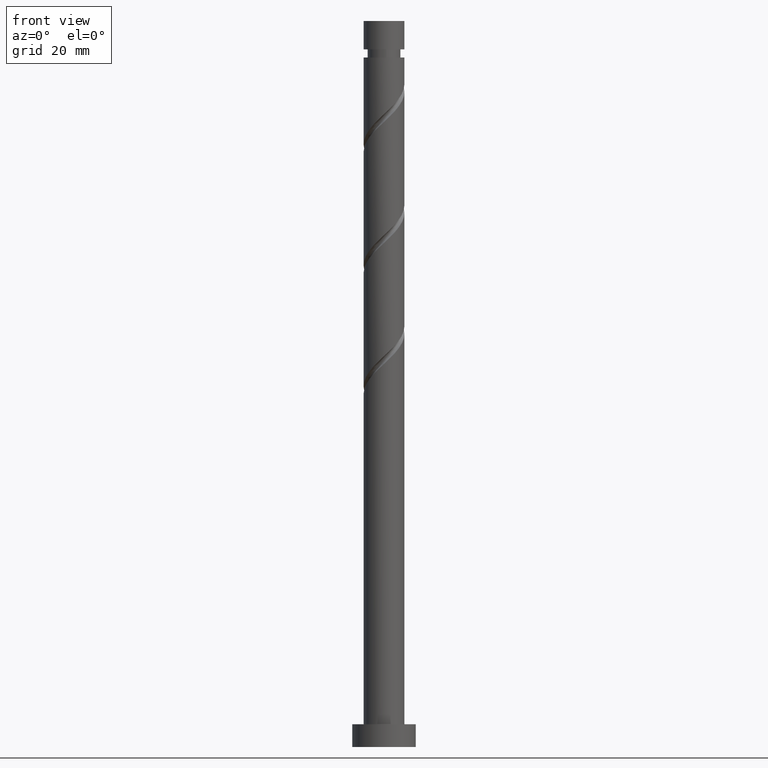
[diagram: clean part render]
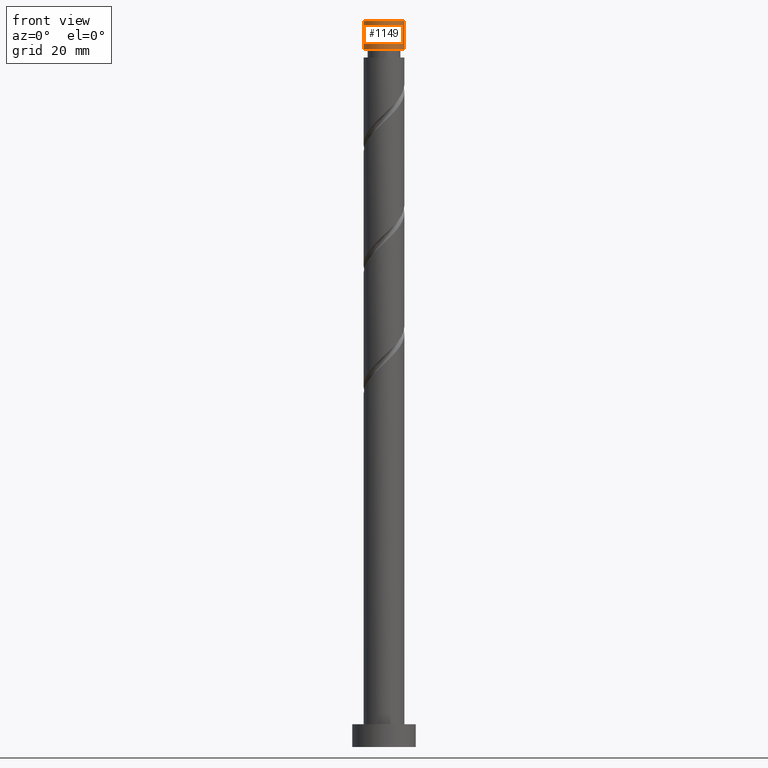
[diagram: same view with one face highlighted and labeled with its STEP entity id]
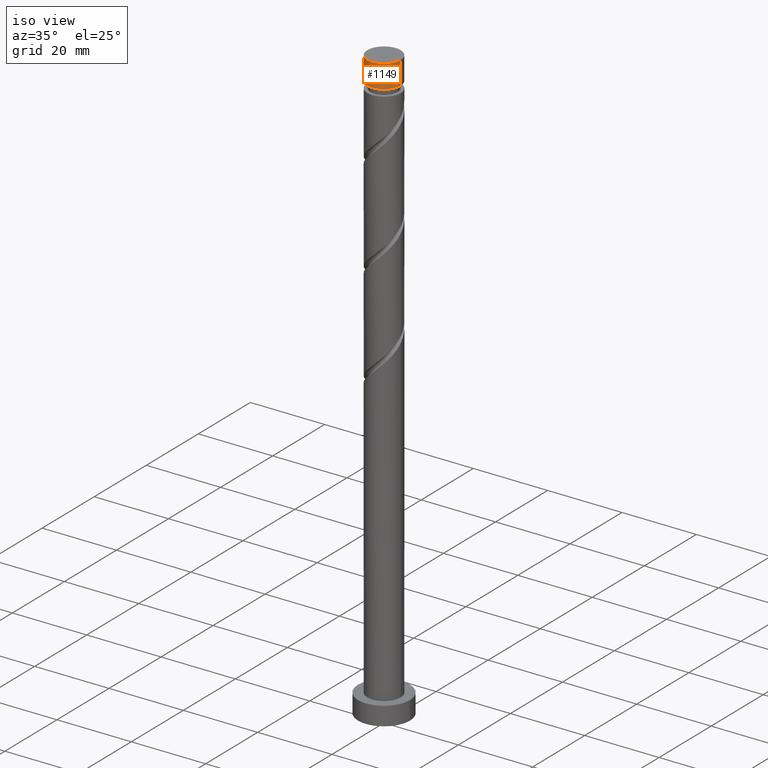
[diagram: same view with one face highlighted and labeled with its STEP entity id]
A machine part, front view. The second image highlights one B-rep face of the part: STEP entity #1149.
A second angle (iso view) of the same face is appended — the face is thin or edge-on in the first view.
In plain terms, the highlighted cylindrical surface (edge-blend (fillet) strip) has radius 4.5 mm, axis along (-0, -0, -1).
Its self-contained STEP definition (entity closure, byte-faithful):
#27 = CARTESIAN_POINT ( 'NONE',  ( 0.000000000000000000, 0.000000000000000000, 153.7529419626821721 ) ) ;
#44 = DIRECTION ( 'NONE',  ( 0.000000000000000000, 0.000000000000000000, 1.000000000000000000 ) ) ;
#50 = AXIS2_PLACEMENT_3D ( 'NONE', #27, #538, #570 ) ;
#81 = DIRECTION ( 'NONE',  ( -1.000000000000000000, 0.000000000000000000, 0.000000000000000000 ) ) ;
#164 = DIRECTION ( 'NONE',  ( -0.000000000000000000, -0.000000000000000000, -1.000000000000000000 ) ) ;
#238 = CIRCLE ( 'NONE', #50, 4.499999999999993783 ) ;
#279 = EDGE_CURVE ( 'NONE', #362, #1163, #907, .T. ) ;
#362 = VERTEX_POINT ( 'NONE', #659 ) ;
#384 = EDGE_CURVE ( 'NONE', #1060, #1163, #238, .T. ) ;
#395 = CARTESIAN_POINT ( 'NONE',  ( 4.500000000000000000, 5.510910596163088569E-16, 160.0000000000000000 ) ) ;
#466 = DIRECTION ( 'NONE',  ( -0.000000000000000000, -0.000000000000000000, -1.000000000000000000 ) ) ;
#538 = DIRECTION ( 'NONE',  ( -0.000000000000000000, -0.000000000000000000, -1.000000000000000000 ) ) ;
#570 = DIRECTION ( 'NONE',  ( -1.000000000000000000, 0.000000000000000000, 0.000000000000000000 ) ) ;
#576 = DIRECTION ( 'NONE',  ( 1.000000000000000000, 0.000000000000000000, 0.000000000000000000 ) ) ;
#583 = CARTESIAN_POINT ( 'NONE',  ( -4.499999999999993783, 0.000000000000000000, 153.7529419626821721 ) ) ;
#658 = AXIS2_PLACEMENT_3D ( 'NONE', #1103, #466, #81 ) ;
#659 = CARTESIAN_POINT ( 'NONE',  ( -4.500000000000000000, 0.000000000000000000, 160.0000000000000000 ) ) ;
#821 = VERTEX_POINT ( 'NONE', #395 ) ;
#825 = CARTESIAN_POINT ( 'NONE',  ( 4.499999999999993783, 5.510910596163084625E-16, 153.7529419626821721 ) ) ;
#881 = VECTOR ( 'NONE', #1610, 1000.000000000000000 ) ;
#907 = LINE ( 'NONE', #930, #1629 ) ;
#908 = EDGE_CURVE ( 'NONE', #362, #821, #1584, .T. ) ;
#930 = CARTESIAN_POINT ( 'NONE',  ( -4.500000000000000000, 0.000000000000000000, 160.0000000000000000 ) ) ;
#980 = FACE_OUTER_BOUND ( 'NONE', #1080, .T. ) ;
#1060 = VERTEX_POINT ( 'NONE', #825 ) ;
#1080 = EDGE_LOOP ( 'NONE', ( #1433, #1611, #1250, #1478 ) ) ;
#1091 = CARTESIAN_POINT ( 'NONE',  ( 4.500000000000000000, 5.510910596163088569E-16, 160.0000000000000000 ) ) ;
#1103 = CARTESIAN_POINT ( 'NONE',  ( 0.000000000000000000, 0.000000000000000000, 160.0000000000000000 ) ) ;
#1117 = EDGE_CURVE ( 'NONE', #821, #1060, #1215, .T. ) ;
#1149 = ADVANCED_FACE ( 'NONE', ( #980 ), #1365, .T. ) ;
#1163 = VERTEX_POINT ( 'NONE', #583 ) ;
#1215 = LINE ( 'NONE', #1091, #881 ) ;
#1250 = ORIENTED_EDGE ( 'NONE', *, *, #279, .T. ) ;
#1365 = CYLINDRICAL_SURFACE ( 'NONE', #658, 4.500000000000000000 ) ;
#1433 = ORIENTED_EDGE ( 'NONE', *, *, #1117, .F. ) ;
#1478 = ORIENTED_EDGE ( 'NONE', *, *, #384, .F. ) ;
#1486 = CARTESIAN_POINT ( 'NONE',  ( 0.000000000000000000, 0.000000000000000000, 160.0000000000000000 ) ) ;
#1500 = AXIS2_PLACEMENT_3D ( 'NONE', #1486, #44, #576 ) ;
#1584 = CIRCLE ( 'NONE', #1500, 4.500000000000000000 ) ;
#1610 = DIRECTION ( 'NONE',  ( -0.000000000000000000, -0.000000000000000000, -1.000000000000000000 ) ) ;
#1611 = ORIENTED_EDGE ( 'NONE', *, *, #908, .F. ) ;
#1629 = VECTOR ( 'NONE', #164, 1000.000000000000000 ) ;